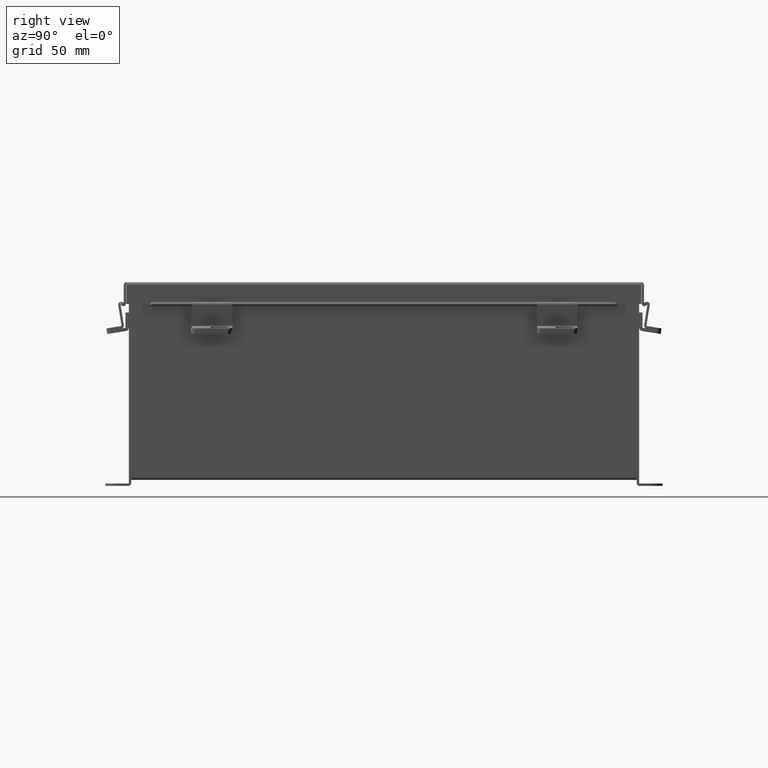
[diagram: clean part render]
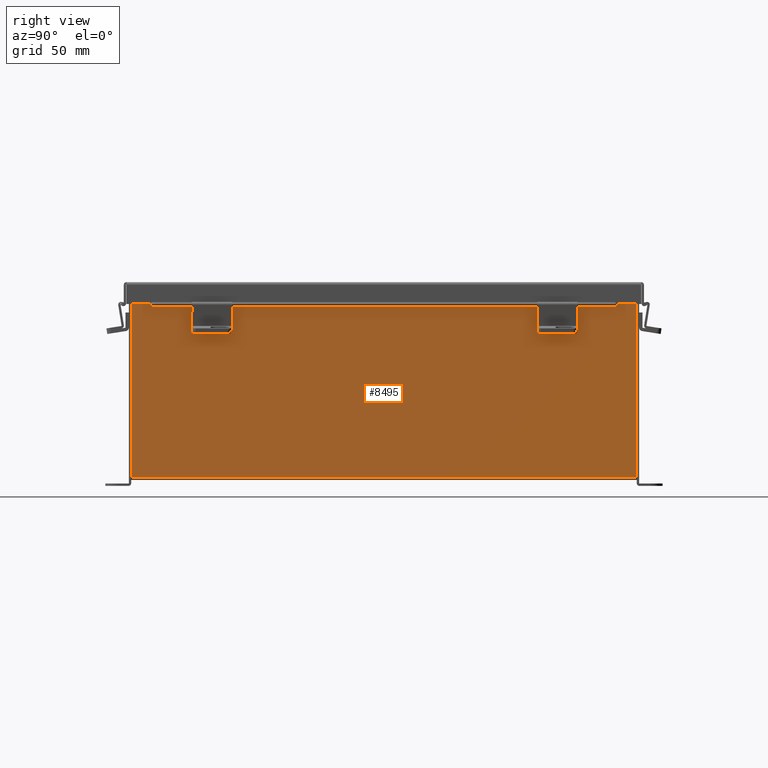
[diagram: same view with one face highlighted and labeled with its STEP entity id]
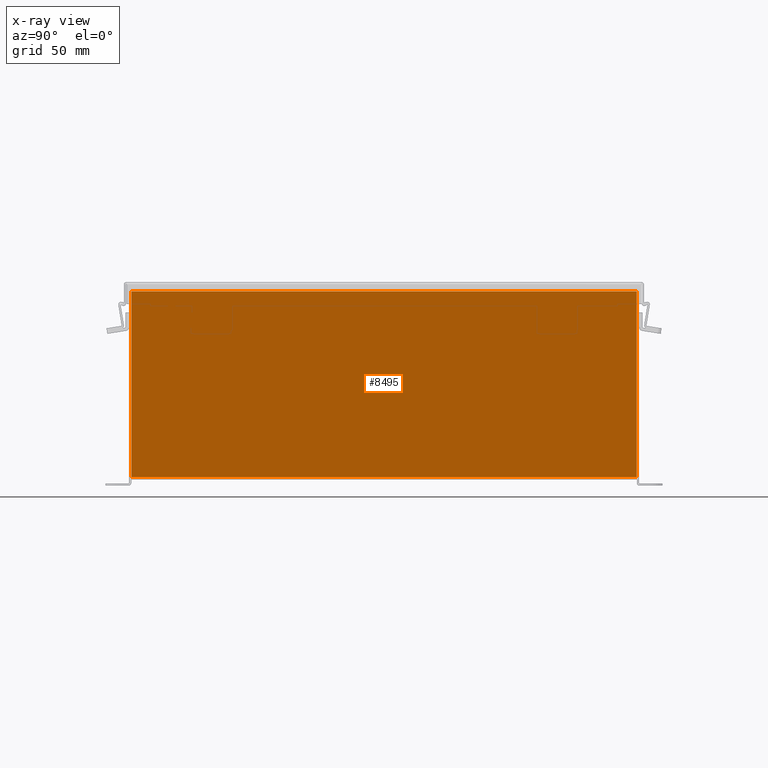
[diagram: x-ray of the same camera — body ghosted, the highlighted face saturated]
A machine part, right view. The second image highlights one B-rep face of the part: STEP entity #8495.
The next image is the same camera in x-ray: the body ghosted, the highlighted face saturated — about 0% of this face is hidden behind the body in this view.
In plain terms, the highlighted planar face has unit normal (-1, 0, 0).
Its self-contained STEP definition (entity closure, byte-faithful):
#51 = FACE_OUTER_BOUND ( 'NONE', #6199, .T. ) ;
#75 = CARTESIAN_POINT ( 'NONE',  ( 6.000000000000021300, -7.925299999999997300, 5.837600000000000100 ) ) ;
#411 = LINE ( 'NONE', #9321, #7740 ) ;
#417 = DIRECTION ( 'NONE',  ( -0.0000000000000000000, -1.000000000000000000, -0.0000000000000000000 ) ) ;
#709 = VERTEX_POINT ( 'NONE', #6075 ) ;
#1214 = PLANE ( 'NONE',  #9826 ) ;
#1378 = VERTEX_POINT ( 'NONE', #7999 ) ;
#1908 = VECTOR ( 'NONE', #417, 39.37007874015748100 ) ;
#2452 = LINE ( 'NONE', #7413, #9370 ) ;
#3082 = ORIENTED_EDGE ( 'NONE', *, *, #5855, .T. ) ;
#3147 = VERTEX_POINT ( 'NONE', #75 ) ;
#3446 = ORIENTED_EDGE ( 'NONE', *, *, #7861, .T. ) ;
#3643 = VERTEX_POINT ( 'NONE', #5092 ) ;
#3794 = EDGE_CURVE ( 'NONE', #3147, #1378, #7456, .T. ) ;
#3943 = DIRECTION ( 'NONE',  ( 3.548703509357741800E-015, -1.867738689135653700E-016, 1.000000000000000000 ) ) ;
#4303 = LINE ( 'NONE', #5588, #1908 ) ;
#4539 = DIRECTION ( 'NONE',  ( -3.548703509357741800E-015, 0.0000000000000000000, -1.000000000000000000 ) ) ;
#4871 = DIRECTION ( 'NONE',  ( 3.548703509357741800E-015, 0.0000000000000000000, 1.000000000000000000 ) ) ;
#5092 = CARTESIAN_POINT ( 'NONE',  ( 6.000000000000021300, 7.925299999999994700, 5.837600000000000100 ) ) ;
#5588 = CARTESIAN_POINT ( 'NONE',  ( 6.000000000000000900, -7.925300000000000000, 0.01299999999999984300 ) ) ;
#5855 = EDGE_CURVE ( 'NONE', #3643, #3147, #2452, .T. ) ;
#6075 = CARTESIAN_POINT ( 'NONE',  ( 6.000000000000000900, 7.925299999999998200, 0.01299999999999984300 ) ) ;
#6199 = EDGE_LOOP ( 'NONE', ( #3082, #6780, #7263, #3446 ) ) ;
#6407 = DIRECTION ( 'NONE',  ( -0.0000000000000000000, -1.000000000000000000, -0.0000000000000000000 ) ) ;
#6780 = ORIENTED_EDGE ( 'NONE', *, *, #3794, .T. ) ;
#7263 = ORIENTED_EDGE ( 'NONE', *, *, #7951, .F. ) ;
#7413 = CARTESIAN_POINT ( 'NONE',  ( 6.000000000000021300, 7.925299999999995600, 5.837600000000000100 ) ) ;
#7456 = LINE ( 'NONE', #9087, #9765 ) ;
#7740 = VECTOR ( 'NONE', #3943, 39.37007874015748100 ) ;
#7861 = EDGE_CURVE ( 'NONE', #709, #3643, #411, .T. ) ;
#7872 = CARTESIAN_POINT ( 'NONE',  ( 6.000000000000000900, 0.0000000000000000000, -2.155598807500707700E-014 ) ) ;
#7951 = EDGE_CURVE ( 'NONE', #709, #1378, #4303, .T. ) ;
#7999 = CARTESIAN_POINT ( 'NONE',  ( 6.000000000000000900, -7.925300000000000000, 0.01299999999999984300 ) ) ;
#8495 = ADVANCED_FACE ( 'NONE', ( #51 ), #1214, .F. ) ;
#9087 = CARTESIAN_POINT ( 'NONE',  ( 6.000000000000000900, -7.925300000000000000, -2.155598807500707700E-014 ) ) ;
#9321 = CARTESIAN_POINT ( 'NONE',  ( 6.000000000000000900, 7.925299999999998200, -2.007054572845213300E-014 ) ) ;
#9370 = VECTOR ( 'NONE', #6407, 39.37007874015748100 ) ;
#9542 = DIRECTION ( 'NONE',  ( -1.000000000000000000, 0.0000000000000000000, 3.548703509357741800E-015 ) ) ;
#9765 = VECTOR ( 'NONE', #4539, 39.37007874015748100 ) ;
#9826 = AXIS2_PLACEMENT_3D ( 'NONE', #7872, #9542, #4871 ) ;